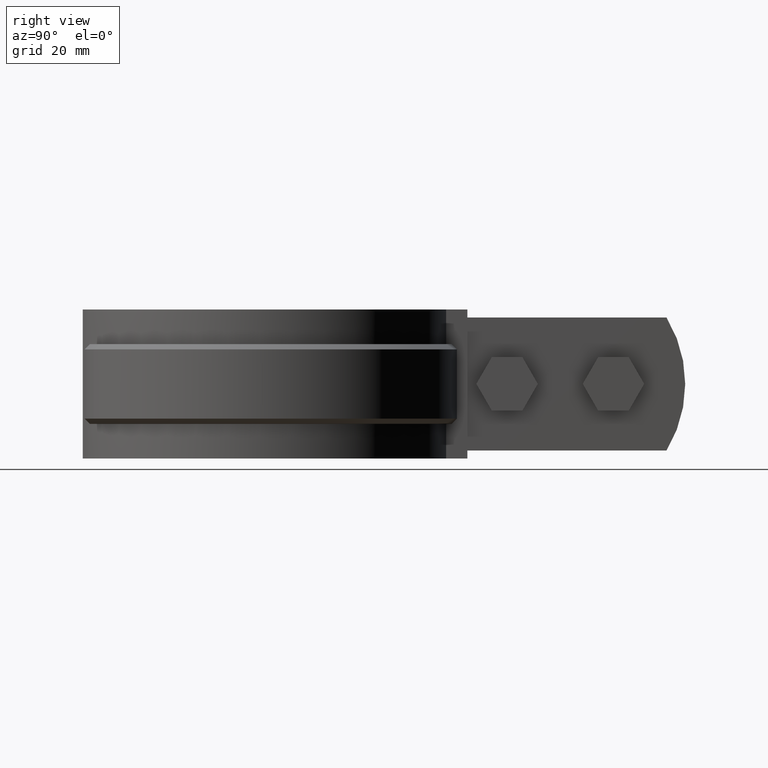
[diagram: clean part render]
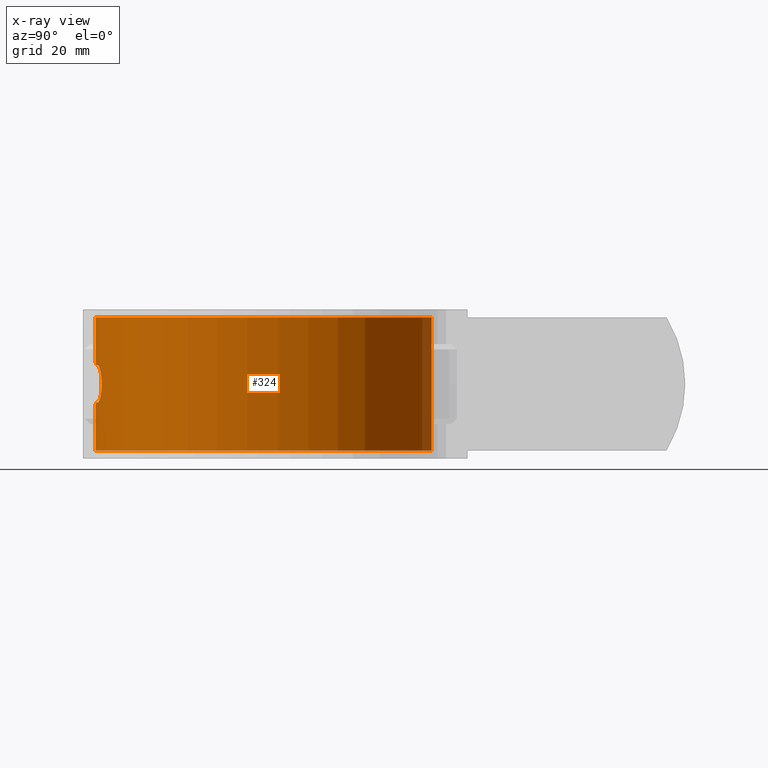
[diagram: x-ray — body ghosted, one internal face saturated and labeled with its STEP entity id]
A machine part, right view, then the same camera in x-ray: the body is ghosted and one INTERNAL B-rep face — a face not visible from any outside direction — is saturated and labeled: STEP entity #324.
In plain terms, the highlighted cylindrical surface (partial cylindrical patch) has radius 31.95 mm, axis along (0, 0, 1).
Its self-contained STEP definition (entity closure, byte-faithful):
#324 = ADVANCED_FACE( '', ( #539, #540 ), #541, .F. );
#539 = FACE_OUTER_BOUND( '', #979, .T. );
#540 = FACE_BOUND( '', #980, .T. );
#541 = CYLINDRICAL_SURFACE( '', #981, 31.9500000000000 );
#979 = EDGE_LOOP( '', ( #2025, #2026, #2027, #2028 ) );
#980 = EDGE_LOOP( '', ( #2029, #2030, #2031, #2032, #2033, #2034, #2035, #2036, #2037, #2038, #2039, #2040, #2041, #2042, #2043, #2044 ) );
#981 = AXIS2_PLACEMENT_3D( '', #2045, #2046, #2047 );
#2025 = ORIENTED_EDGE( '', *, *, #4496, .T. );
#2026 = ORIENTED_EDGE( '', *, *, #4497, .F. );
#2027 = ORIENTED_EDGE( '', *, *, #4498, .F. );
#2028 = ORIENTED_EDGE( '', *, *, #4444, .T. );
#2029 = ORIENTED_EDGE( '', *, *, #4499, .T. );
#2030 = ORIENTED_EDGE( '', *, *, #4500, .T. );
#2031 = ORIENTED_EDGE( '', *, *, #4501, .T. );
#2032 = ORIENTED_EDGE( '', *, *, #4502, .T. );
#2033 = ORIENTED_EDGE( '', *, *, #4503, .T. );
#2034 = ORIENTED_EDGE( '', *, *, #4504, .T. );
#2035 = ORIENTED_EDGE( '', *, *, #4494, .T. );
#2036 = ORIENTED_EDGE( '', *, *, #4491, .T. );
#2037 = ORIENTED_EDGE( '', *, *, #4493, .T. );
#2038 = ORIENTED_EDGE( '', *, *, #4454, .T. );
#2039 = ORIENTED_EDGE( '', *, *, #4457, .T. );
#2040 = ORIENTED_EDGE( '', *, *, #4505, .T. );
#2041 = ORIENTED_EDGE( '', *, *, #4506, .T. );
#2042 = ORIENTED_EDGE( '', *, *, #4507, .T. );
#2043 = ORIENTED_EDGE( '', *, *, #4508, .T. );
#2044 = ORIENTED_EDGE( '', *, *, #4509, .T. );
#2045 = CARTESIAN_POINT( '', ( 0.000000000000000, 0.000000000000000, 0.000000000000000 ) );
#2046 = DIRECTION( '', ( 0.000000000000000, 0.000000000000000, 1.00000000000000 ) );
#2047 = DIRECTION( '', ( 1.00000000000000, -6.12303176911189E-017, 0.000000000000000 ) );
#4444 = EDGE_CURVE( '', #4978, #4976, #4979, .T. );
#4454 = EDGE_CURVE( '', #4988, #4996, #4998, .T. );
#4457 = EDGE_CURVE( '', #4996, #5001, #5003, .T. );
#4491 = EDGE_CURVE( '', #5067, #5065, #5068, .T. );
#4493 = EDGE_CURVE( '', #5065, #4988, #5070, .T. );
#4494 = EDGE_CURVE( '', #5071, #5067, #5072, .T. );
#4496 = EDGE_CURVE( '', #4976, #5074, #5075, .T. );
#4497 = EDGE_CURVE( '', #5076, #5074, #5077, .T. );
#4498 = EDGE_CURVE( '', #4978, #5076, #5078, .T. );
#4499 = EDGE_CURVE( '', #5079, #5080, #5081, .T. );
#4500 = EDGE_CURVE( '', #5080, #5082, #5083, .T. );
#4501 = EDGE_CURVE( '', #5082, #5084, #5085, .T. );
#4502 = EDGE_CURVE( '', #5084, #5086, #5087, .T. );
#4503 = EDGE_CURVE( '', #5086, #5088, #5089, .T. );
#4504 = EDGE_CURVE( '', #5088, #5071, #5090, .T. );
#4505 = EDGE_CURVE( '', #5001, #5091, #5092, .T. );
#4506 = EDGE_CURVE( '', #5091, #5093, #5094, .T. );
#4507 = EDGE_CURVE( '', #5093, #5095, #5096, .T. );
#4508 = EDGE_CURVE( '', #5095, #5097, #5098, .T. );
#4509 = EDGE_CURVE( '', #5097, #5079, #5099, .T. );
#4976 = VERTEX_POINT( '', #5851 );
#4978 = VERTEX_POINT( '', #5853 );
#4979 = CIRCLE( '', #5854, 31.9500000000000 );
#4988 = VERTEX_POINT( '', #5872 );
#4996 = VERTEX_POINT( '', #5914 );
#4998 = B_SPLINE_CURVE_WITH_KNOTS( '', 3, ( #5917, #5918, #5919, #5920, #5921, #5922, #5923, #5924, #5925, #5926, #5927, #5928, #5929, #5930, #5931, #5932, #5933, #5934, #5935, #5936, #5937, #5938, #5939, #5940, #5941, #5942, #5943, #5944, #5945, #5946, #5947, #5948, #5949, #5950 ), .UNSPECIFIED., .F., .F., ( 4, 2, 2, 2, 2, 2, 2, 2, 2, 2, 2, 2, 2, 2, 2, 2, 4 ), ( 3.46944695195361E-018, 0.000691058954399838, 0.00138211790879967, 0.00207317686319951, 0.00276423581759934, 0.00345529477199917, 0.00414635372639901, 0.00483741268079884, 0.00552847163519868, 0.00621953058959851, 0.00691058954399835, 0.00760164849839818, 0.00829270745279801, 0.00898376640719785, 0.00967482536159769, 0.0103658843159975, 0.0110569432703974 ), .UNSPECIFIED. );
#5001 = VERTEX_POINT( '', #5953 );
#5003 = CIRCLE( '', #5956, 31.9500000000000 );
#5065 = VERTEX_POINT( '', #6330 );
#5067 = VERTEX_POINT( '', #6333 );
#5068 = B_SPLINE_CURVE_WITH_KNOTS( '', 3, ( #6334, #6335, #6336, #6337, #6338, #6339 ), .UNSPECIFIED., .F., .F., ( 4, 2, 4 ), ( 4.33680868994202E-019, 0.000335974106384814, 0.000671948212769628 ), .UNSPECIFIED. );
#5070 = CIRCLE( '', #6342, 31.9500000000000 );
#5071 = VERTEX_POINT( '', #6343 );
#5072 = ELLIPSE( '', #6344, 145.550148496892, 31.9500000000000 );
#5074 = VERTEX_POINT( '', #6347 );
#5075 = LINE( '', #6348, #6349 );
#5076 = VERTEX_POINT( '', #6350 );
#5077 = CIRCLE( '', #6351, 31.9500000000000 );
#5078 = LINE( '', #6352, #6353 );
#5079 = VERTEX_POINT( '', #6354 );
#5080 = VERTEX_POINT( '', #6355 );
#5081 = CIRCLE( '', #6356, 31.9500000000000 );
#5082 = VERTEX_POINT( '', #6357 );
#5083 = B_SPLINE_CURVE_WITH_KNOTS( '', 3, ( #6358, #6359, #6360, #6361, #6362, #6363, #6364, #6365, #6366, #6367, #6368, #6369, #6370, #6371, #6372, #6373, #6374, #6375, #6376, #6377, #6378, #6379, #6380, #6381, #6382, #6383, #6384, #6385, #6386, #6387, #6388, #6389, #6390, #6391 ), .UNSPECIFIED., .F., .F., ( 4, 2, 2, 2, 2, 2, 2, 2, 2, 2, 2, 2, 2, 2, 2, 2, 4 ), ( 0.000000000000000, 0.000691058954399831, 0.00138211790879966, 0.00207317686319949, 0.00276423581759932, 0.00345529477199916, 0.00414635372639899, 0.00483741268079882, 0.00552847163519865, 0.00621953058959848, 0.00691058954399831, 0.00760164849839814, 0.00829270745279797, 0.00898376640719781, 0.00967482536159764, 0.0103658843159975, 0.0110569432703973 ), .UNSPECIFIED. );
#5084 = VERTEX_POINT( '', #6392 );
#5085 = CIRCLE( '', #6393, 31.9500000000000 );
#5086 = VERTEX_POINT( '', #6394 );
#5087 = B_SPLINE_CURVE_WITH_KNOTS( '', 3, ( #6395, #6396, #6397, #6398, #6399, #6400 ), .UNSPECIFIED., .F., .F., ( 4, 2, 4 ), ( 8.20849171219253E-018, 0.000335970375242609, 0.000671940750485210 ), .UNSPECIFIED. );
#5088 = VERTEX_POINT( '', #6401 );
#5089 = ELLIPSE( '', #6402, 145.550074248421, 31.9500000000000 );
#5090 = B_SPLINE_CURVE_WITH_KNOTS( '', 3, ( #6403, #6404, #6405, #6406, #6407, #6408, #6409, #6410, #6411, #6412 ), .UNSPECIFIED., .F., .F., ( 4, 2, 2, 2, 4 ), ( 0.000000000000000, 0.000671592562954851, 0.00134318512590970, 0.00201477768886455, 0.00268637025181940 ), .UNSPECIFIED. );
#5091 = VERTEX_POINT( '', #6413 );
#5092 = B_SPLINE_CURVE_WITH_KNOTS( '', 3, ( #6414, #6415, #6416, #6417, #6418, #6419 ), .UNSPECIFIED., .F., .F., ( 4, 2, 4 ), ( 2.81892564846231E-018, 0.000335970375242659, 0.000671940750485315 ), .UNSPECIFIED. );
#5093 = VERTEX_POINT( '', #6420 );
#5094 = ELLIPSE( '', #6421, 145.550074248429, 31.9500000000000 );
#5095 = VERTEX_POINT( '', #6422 );
#5096 = B_SPLINE_CURVE_WITH_KNOTS( '', 3, ( #6423, #6424, #6425, #6426, #6427, #6428, #6429, #6430, #6431, #6432 ), .UNSPECIFIED., .F., .F., ( 4, 2, 2, 2, 4 ), ( 0.000000000000000, 0.000671592562954858, 0.00134318512590972, 0.00201477768886457, 0.00268637025181943 ), .UNSPECIFIED. );
#5097 = VERTEX_POINT( '', #6433 );
#5098 = ELLIPSE( '', #6434, 145.550148496923, 31.9500000000000 );
#5099 = B_SPLINE_CURVE_WITH_KNOTS( '', 3, ( #6435, #6436, #6437, #6438, #6439, #6440 ), .UNSPECIFIED., .F., .F., ( 4, 2, 4 ), ( 4.33680868994202E-019, 0.000335974106384860, 0.000671948212769720 ), .UNSPECIFIED. );
#5851 = CARTESIAN_POINT( '', ( 6.85622317596565, 31.2056838374254, 0.000000000000000 ) );
#5853 = CARTESIAN_POINT( '', ( -6.85622317596565, 31.2056838374254, 0.000000000000000 ) );
#5854 = AXIS2_PLACEMENT_3D( '', #8991, #8992, #8993 );
#5872 = CARTESIAN_POINT( '', ( -5.00000000000005, -31.5563385075011, -9.00000000000002 ) );
#5914 = CARTESIAN_POINT( '', ( -5.00000000000005, -31.5563385075011, -16.0000000000000 ) );
#5917 = CARTESIAN_POINT( '', ( -5.00000000000006, -31.5563385075011, -9.00000000000000 ) );
#5918 = CARTESIAN_POINT( '', ( -5.23082435471590, -31.5197651333974, -9.00000000000000 ) );
#5919 = CARTESIAN_POINT( '', ( -5.45740099431641, -31.4812710180263, -9.02260713359055 ) );
#5920 = CARTESIAN_POINT( '', ( -5.90252540393379, -31.4008573828662, -9.11076340273932 ) );
#5921 = CARTESIAN_POINT( '', ( -6.12322775057555, -31.3584895976071, -9.17729216631477 ) );
#5922 = CARTESIAN_POINT( '', ( -6.54497963023814, -31.2731838732231, -9.35118024176590 ) );
#5923 = CARTESIAN_POINT( '', ( -6.74493879792332, -31.2305282998837, -9.45750641570215 ) );
#5924 = CARTESIAN_POINT( '', ( -7.12349560628831, -31.1463626708603, -9.70852278729237 ) );
#5925 = CARTESIAN_POINT( '', ( -7.30327388090101, -31.1045384738789, -9.85486447686413 ) );
#5926 = CARTESIAN_POINT( '', ( -7.62647749208530, -31.0268748686551, -10.1754724157874 ) );
#5927 = CARTESIAN_POINT( '', ( -7.77172877808563, -30.9906490826262, -10.3505232519596 ) );
#5928 = CARTESIAN_POINT( '', ( -8.02881034475353, -30.9250433016767, -10.7310911258213 ) );
#5929 = CARTESIAN_POINT( '', ( -8.13944714984436, -30.8959592502532, -10.9359163513138 ) );
#5930 = CARTESIAN_POINT( '', ( -8.31654539734069, -30.8487596274532, -11.3585041856705 ) );
#5931 = CARTESIAN_POINT( '', ( -8.38456336319786, -30.8302431254002, -11.5784729116417 ) );
#5932 = CARTESIAN_POINT( '', ( -8.47695894340387, -30.8049664994885, -12.0360626766867 ) );
#5933 = CARTESIAN_POINT( '', ( -8.49975084488296, -30.7986482761930, -12.2657328020545 ) );
#5934 = CARTESIAN_POINT( '', ( -8.50024513194292, -30.7985118595463, -12.7267622380427 ) );
#5935 = CARTESIAN_POINT( '', ( -8.47723598761938, -30.8048890747898, -12.9608200322488 ) );
#5936 = CARTESIAN_POINT( '', ( -8.38632453918907, -30.8297629187006, -13.4145115258995 ) );
#5937 = CARTESIAN_POINT( '', ( -8.31911636750168, -30.8480670597381, -13.6343045090072 ) );
#5938 = CARTESIAN_POINT( '', ( -8.14159458149678, -30.8953940924642, -14.0599883543417 ) );
#5939 = CARTESIAN_POINT( '', ( -8.03087726938537, -30.9245022710997, -14.2652047870432 ) );
#5940 = CARTESIAN_POINT( '', ( -7.77576953824425, -30.9896311452604, -14.6441241645092 ) );
#5941 = CARTESIAN_POINT( '', ( -7.63013060726717, -31.0259858186443, -14.8206401144173 ) );
#5942 = CARTESIAN_POINT( '', ( -7.30363732587390, -31.1044622347787, -15.1450354672040 ) );
#5943 = CARTESIAN_POINT( '', ( -7.12736355458527, -31.1454750556618, -15.2885063780423 ) );
#5944 = CARTESIAN_POINT( '', ( -6.74967310139175, -31.2295027290931, -15.5397512319310 ) );
#5945 = CARTESIAN_POINT( '', ( -6.54588777106786, -31.2729911935889, -15.6483474673443 ) );
#5946 = CARTESIAN_POINT( '', ( -6.12488272248299, -31.3581637941627, -15.8221227606050 ) );
#5947 = CARTESIAN_POINT( '', ( -5.90802429860368, -31.3998285083849, -15.8878204821735 ) );
#5948 = CARTESIAN_POINT( '', ( -5.46147451145804, -31.4805698428343, -15.9769062428492 ) );
#5949 = CARTESIAN_POINT( '', ( -5.23082732099575, -31.5197646633999, -16.0000000000000 ) );
#5950 = CARTESIAN_POINT( '', ( -5.00000000000005, -31.5563385075011, -16.0000000000000 ) );
#5953 = CARTESIAN_POINT( '', ( -1.65000000000006, -31.9073659207400, -16.0000000000000 ) );
#5956 = AXIS2_PLACEMENT_3D( '', #9004, #9005, #9006 );
#6330 = CARTESIAN_POINT( '', ( -1.65000000000003, -31.9073659207400, -9.00000000000002 ) );
#6333 = CARTESIAN_POINT( '', ( -1.16219512100915, -31.9288553271285, -8.60975609337375 ) );
#6334 = CARTESIAN_POINT( '', ( -1.16219512100916, -31.9288553271285, -8.60975609337375 ) );
#6335 = CARTESIAN_POINT( '', ( -1.18713187267133, -31.9279476412494, -8.72058610520343 ) );
#6336 = CARTESIAN_POINT( '', ( -1.24908222759633, -31.9256976399462, -8.81961539303912 ) );
#6337 = CARTESIAN_POINT( '', ( -1.42642258605681, -31.9182658491114, -8.96141326343220 ) );
#6338 = CARTESIAN_POINT( '', ( -1.53655064222882, -31.9132326363061, -8.99999999999997 ) );
#6339 = CARTESIAN_POINT( '', ( -1.65000000000003, -31.9073659207400, -8.99999999999997 ) );
#6342 = AXIS2_PLACEMENT_3D( '', #9037, #9038, #9039 );
#6343 = CARTESIAN_POINT( '', ( -0.975610000000029, -31.9351011447889, -7.78048800000007 ) );
#6344 = AXIS2_PLACEMENT_3D( '', #9040, #9041, #9042 );
#6347 = CARTESIAN_POINT( '', ( 6.85622317596565, 31.2056838374254, -25.0000000000000 ) );
#6348 = CARTESIAN_POINT( '', ( 6.85622317596565, 31.2056838374254, 0.000000000000000 ) );
#6349 = VECTOR( '', #9044, 1000.00000000000 );
#6350 = CARTESIAN_POINT( '', ( -6.85622317596565, 31.2056838374254, -25.0000000000000 ) );
#6351 = AXIS2_PLACEMENT_3D( '', #9045, #9046, #9047 );
#6352 = CARTESIAN_POINT( '', ( -6.85622317596565, 31.2056838374254, 0.000000000000000 ) );
#6353 = VECTOR( '', #9048, 1000.00000000000 );
#6354 = CARTESIAN_POINT( '', ( 1.65000000000001, -31.9073659207400, -16.0000000000000 ) );
#6355 = CARTESIAN_POINT( '', ( 4.99999999999994, -31.5563385075011, -16.0000000000000 ) );
#6356 = AXIS2_PLACEMENT_3D( '', #9049, #9050, #9051 );
#6357 = CARTESIAN_POINT( '', ( 5.00000000000000, -31.5563385075011, -9.00000000000002 ) );
#6358 = CARTESIAN_POINT( '', ( 4.99999999999994, -31.5563385075011, -16.0000000000000 ) );
#6359 = CARTESIAN_POINT( '', ( 5.23082435471579, -31.5197651333974, -16.0000000000000 ) );
#6360 = CARTESIAN_POINT( '', ( 5.45740099431629, -31.4812710180263, -15.9773928664095 ) );
#6361 = CARTESIAN_POINT( '', ( 5.90252540393367, -31.4008573828662, -15.8892365972607 ) );
#6362 = CARTESIAN_POINT( '', ( 6.12322775057543, -31.3584895976071, -15.8227078336852 ) );
#6363 = CARTESIAN_POINT( '', ( 6.54497963023802, -31.2731838732231, -15.6488197582341 ) );
#6364 = CARTESIAN_POINT( '', ( 6.74493879792319, -31.2305282998837, -15.5424935842979 ) );
#6365 = CARTESIAN_POINT( '', ( 7.12349560628818, -31.1463626708603, -15.2914772127076 ) );
#6366 = CARTESIAN_POINT( '', ( 7.30327388090088, -31.1045384738789, -15.1451355231359 ) );
#6367 = CARTESIAN_POINT( '', ( 7.62647749208518, -31.0268748686551, -14.8245275842126 ) );
#6368 = CARTESIAN_POINT( '', ( 7.77172877808550, -30.9906490826262, -14.6494767480404 ) );
#6369 = CARTESIAN_POINT( '', ( 8.02881034475341, -30.9250433016768, -14.2689088741788 ) );
#6370 = CARTESIAN_POINT( '', ( 8.13944714984424, -30.8959592502532, -14.0640836486862 ) );
#6371 = CARTESIAN_POINT( '', ( 8.31654539734058, -30.8487596274532, -13.6414958143295 ) );
#6372 = CARTESIAN_POINT( '', ( 8.38456336319774, -30.8302431254002, -13.4215270883583 ) );
#6373 = CARTESIAN_POINT( '', ( 8.47695894340376, -30.8049664994885, -12.9639373233133 ) );
#6374 = CARTESIAN_POINT( '', ( 8.49975084488285, -30.7986482761930, -12.7342671979456 ) );
#6375 = CARTESIAN_POINT( '', ( 8.50024513194280, -30.7985118595463, -12.2732377619573 ) );
#6376 = CARTESIAN_POINT( '', ( 8.47723598761927, -30.8048890747898, -12.0391799677513 ) );
#6377 = CARTESIAN_POINT( '', ( 8.38632453918897, -30.8297629187006, -11.5854884741006 ) );
#6378 = CARTESIAN_POINT( '', ( 8.31911636750158, -30.8480670597381, -11.3656954909928 ) );
#6379 = CARTESIAN_POINT( '', ( 8.14159458149669, -30.8953940924643, -10.9400116456583 ) );
#6380 = CARTESIAN_POINT( '', ( 8.03087726938527, -30.9245022710998, -10.7347952129568 ) );
#6381 = CARTESIAN_POINT( '', ( 7.77576953824417, -30.9896311452605, -10.3558758354908 ) );
#6382 = CARTESIAN_POINT( '', ( 7.63013060726709, -31.0259858186443, -10.1793598855827 ) );
#6383 = CARTESIAN_POINT( '', ( 7.30363732587383, -31.1044622347787, -9.85496453279606 ) );
#6384 = CARTESIAN_POINT( '', ( 7.12736355458520, -31.1454750556618, -9.71149362195777 ) );
#6385 = CARTESIAN_POINT( '', ( 6.74967310139168, -31.2295027290931, -9.46024876806900 ) );
#6386 = CARTESIAN_POINT( '', ( 6.54588777106779, -31.2729911935889, -9.35165253265569 ) );
#6387 = CARTESIAN_POINT( '', ( 6.12488272248293, -31.3581637941627, -9.17787723939501 ) );
#6388 = CARTESIAN_POINT( '', ( 5.90802429860362, -31.3998285083849, -9.11217951782650 ) );
#6389 = CARTESIAN_POINT( '', ( 5.46147451145798, -31.4805698428343, -9.02309375715083 ) );
#6390 = CARTESIAN_POINT( '', ( 5.23082732099569, -31.5197646633999, -9.00000000000000 ) );
#6391 = CARTESIAN_POINT( '', ( 5.00000000000000, -31.5563385075011, -8.99999999999999 ) );
#6392 = CARTESIAN_POINT( '', ( 1.64999999999995, -31.9073659207400, -9.00000000000002 ) );
#6393 = AXIS2_PLACEMENT_3D( '', #9052, #9053, #9054 );
#6394 = CARTESIAN_POINT( '', ( 1.16219499999998, -31.9288553315332, -8.60975600000001 ) );
#6395 = CARTESIAN_POINT( '', ( 1.64999999999995, -31.9073659207400, -8.99999999999998 ) );
#6396 = CARTESIAN_POINT( '', ( 1.53655061302657, -31.9132326378163, -9.00000000048690 ) );
#6397 = CARTESIAN_POINT( '', ( 1.42642217051770, -31.9182658618819, -8.96141231679778 ) );
#6398 = CARTESIAN_POINT( '', ( 1.24908598071732, -31.9256974873078, -8.81961908034416 ) );
#6399 = CARTESIAN_POINT( '', ( 1.18713175896273, -31.9279476454830, -8.72058604205557 ) );
#6400 = CARTESIAN_POINT( '', ( 1.16219499999998, -31.9288553315332, -8.60975600000002 ) );
#6401 = CARTESIAN_POINT( '', ( 0.975609757981811, -31.9351011521825, -7.78048781325258 ) );
#6402 = AXIS2_PLACEMENT_3D( '', #9055, #9056, #9057 );
#6403 = CARTESIAN_POINT( '', ( 0.975609757981813, -31.9351011521825, -7.78048781325258 ) );
#6404 = CARTESIAN_POINT( '', ( 0.925762131807932, -31.9366239853270, -7.55894289816459 ) );
#6405 = CARTESIAN_POINT( '', ( 0.802004281958659, -31.9404248091216, -7.36098149685961 ) );
#6406 = CARTESIAN_POINT( '', ( 0.447401219951477, -31.9473595153624, -7.07729329333948 ) );
#6407 = CARTESIAN_POINT( '', ( 0.227087531318242, -31.9500000050751, -6.99999985712682 ) );
#6408 = CARTESIAN_POINT( '', ( -0.227088959384785, -31.9499999949249, -7.00000013600625 ) );
#6409 = CARTESIAN_POINT( '', ( -0.447420557608798, -31.9473591883756, -7.07730524544406 ) );
#6410 = CARTESIAN_POINT( '', ( -0.802003382571737, -31.9404247755224, -7.36098397583484 ) );
#6411 = CARTESIAN_POINT( '', ( -0.925762415293189, -31.9366239770447, -7.55894307119162 ) );
#6412 = CARTESIAN_POINT( '', ( -0.975610000000028, -31.9351011447889, -7.78048800000007 ) );
#6413 = CARTESIAN_POINT( '', ( -1.16219500000000, -31.9288553315332, -16.3902440000000 ) );
#6414 = CARTESIAN_POINT( '', ( -1.65000000000006, -31.9073659207400, -16.0000000000000 ) );
#6415 = CARTESIAN_POINT( '', ( -1.53655061302666, -31.9132326378163, -15.9999999995131 ) );
#6416 = CARTESIAN_POINT( '', ( -1.42642217051778, -31.9182658618819, -16.0385876832022 ) );
#6417 = CARTESIAN_POINT( '', ( -1.24908598071737, -31.9256974873078, -16.1803809196558 ) );
#6418 = CARTESIAN_POINT( '', ( -1.18713175896275, -31.9279476454830, -16.2794139579444 ) );
#6419 = CARTESIAN_POINT( '', ( -1.16219500000000, -31.9288553315332, -16.3902440000000 ) );
#6420 = CARTESIAN_POINT( '', ( -0.975609757981853, -31.9351011521825, -17.2195121867475 ) );
#6421 = AXIS2_PLACEMENT_3D( '', #9058, #9059, #9060 );
#6422 = CARTESIAN_POINT( '', ( 0.975610000000012, -31.9351011447889, -17.2195120000000 ) );
#6423 = CARTESIAN_POINT( '', ( -0.975609757981853, -31.9351011521825, -17.2195121867475 ) );
#6424 = CARTESIAN_POINT( '', ( -0.925762131807970, -31.9366239853270, -17.4410571018355 ) );
#6425 = CARTESIAN_POINT( '', ( -0.802004281958695, -31.9404248091216, -17.6390185031405 ) );
#6426 = CARTESIAN_POINT( '', ( -0.447401219951506, -31.9473595153624, -17.9227067066606 ) );
#6427 = CARTESIAN_POINT( '', ( -0.227087531318268, -31.9500000050751, -18.0000001428733 ) );
#6428 = CARTESIAN_POINT( '', ( 0.227088959384764, -31.9499999949249, -17.9999998639938 ) );
#6429 = CARTESIAN_POINT( '', ( 0.447420557608777, -31.9473591883756, -17.9226947545560 ) );
#6430 = CARTESIAN_POINT( '', ( 0.802003382571720, -31.9404247755224, -17.6390160241652 ) );
#6431 = CARTESIAN_POINT( '', ( 0.925762415293173, -31.9366239770447, -17.4410569288084 ) );
#6432 = CARTESIAN_POINT( '', ( 0.975610000000013, -31.9351011447889, -17.2195120000000 ) );
#6433 = CARTESIAN_POINT( '', ( 1.16219512100908, -31.9288553271285, -16.3902439066263 ) );
#6434 = AXIS2_PLACEMENT_3D( '', #9061, #9062, #9063 );
#6435 = CARTESIAN_POINT( '', ( 1.16219512100909, -31.9288553271285, -16.3902439066263 ) );
#6436 = CARTESIAN_POINT( '', ( 1.18713187267125, -31.9279476412494, -16.2794138947966 ) );
#6437 = CARTESIAN_POINT( '', ( 1.24908222759625, -31.9256976399462, -16.1803846069609 ) );
#6438 = CARTESIAN_POINT( '', ( 1.42642258605674, -31.9182658491114, -16.0385867365678 ) );
#6439 = CARTESIAN_POINT( '', ( 1.53655064222877, -31.9132326363061, -16.0000000000000 ) );
#6440 = CARTESIAN_POINT( '', ( 1.65000000000000, -31.9073659207400, -16.0000000000000 ) );
#8991 = CARTESIAN_POINT( '', ( 0.000000000000000, 0.000000000000000, 0.000000000000000 ) );
#8992 = DIRECTION( '', ( 0.000000000000000, 0.000000000000000, 1.00000000000000 ) );
#8993 = DIRECTION( '', ( 1.00000000000000, -6.12303176911189E-017, 0.000000000000000 ) );
#9004 = CARTESIAN_POINT( '', ( 0.000000000000000, 0.000000000000000, -16.0000000000000 ) );
#9005 = DIRECTION( '', ( -6.12303176911189E-017, 0.000000000000000, 1.00000000000000 ) );
#9006 = DIRECTION( '', ( 1.00000000000000, 0.000000000000000, 6.12303176911189E-017 ) );
#9037 = CARTESIAN_POINT( '', ( 0.000000000000000, 0.000000000000000, -9.00000000000002 ) );
#9038 = DIRECTION( '', ( 6.12303176911189E-017, 0.000000000000000, -1.00000000000000 ) );
#9039 = DIRECTION( '', ( -1.00000000000000, 0.000000000000000, -6.12303176911189E-017 ) );
#9040 = CARTESIAN_POINT( '', ( 0.000000000000000, 0.000000000000000, -3.44443890776448 ) );
#9041 = DIRECTION( '', ( 0.975609806487711, 0.000000000000000, -0.219511971165610 ) );
#9042 = DIRECTION( '', ( -0.219511971165610, 0.000000000000000, -0.975609806487711 ) );
#9044 = DIRECTION( '', ( 0.000000000000000, 0.000000000000000, -1.00000000000000 ) );
#9045 = CARTESIAN_POINT( '', ( 0.000000000000000, 0.000000000000000, -25.0000000000000 ) );
#9046 = DIRECTION( '', ( 0.000000000000000, 0.000000000000000, 1.00000000000000 ) );
#9047 = DIRECTION( '', ( 1.00000000000000, -6.12303176911189E-017, 0.000000000000000 ) );
#9048 = DIRECTION( '', ( 0.000000000000000, 0.000000000000000, -1.00000000000000 ) );
#9049 = CARTESIAN_POINT( '', ( 0.000000000000000, 0.000000000000000, -16.0000000000000 ) );
#9050 = DIRECTION( '', ( -6.12303176911189E-017, 0.000000000000000, 1.00000000000000 ) );
#9051 = DIRECTION( '', ( 1.00000000000000, 0.000000000000000, 6.12303176911189E-017 ) );
#9052 = CARTESIAN_POINT( '', ( 0.000000000000000, 0.000000000000000, -9.00000000000002 ) );
#9053 = DIRECTION( '', ( 6.12303176911189E-017, 0.000000000000000, -1.00000000000000 ) );
#9054 = DIRECTION( '', ( -1.00000000000000, 0.000000000000000, -6.12303176911189E-017 ) );
#9055 = CARTESIAN_POINT( '', ( 0.000000000000000, 0.000000000000000, -3.44444212055033 ) );
#9056 = DIRECTION( '', ( -0.975609781292647, 0.000000000000000, -0.219512083143762 ) );
#9057 = DIRECTION( '', ( 0.219512083143762, 0.000000000000000, -0.975609781292647 ) );
#9058 = CARTESIAN_POINT( '', ( 0.000000000000000, 0.000000000000000, -21.5555578794502 ) );
#9059 = DIRECTION( '', ( 0.975609781292650, 0.000000000000000, 0.219512083143750 ) );
#9060 = DIRECTION( '', ( 0.219512083143750, 0.000000000000000, -0.975609781292650 ) );
#9061 = CARTESIAN_POINT( '', ( 0.000000000000000, 0.000000000000000, -21.5555610922364 ) );
#9062 = DIRECTION( '', ( -0.975609806487721, 0.000000000000000, 0.219511971165564 ) );
#9063 = DIRECTION( '', ( -0.219511971165564, 0.000000000000000, -0.975609806487721 ) );